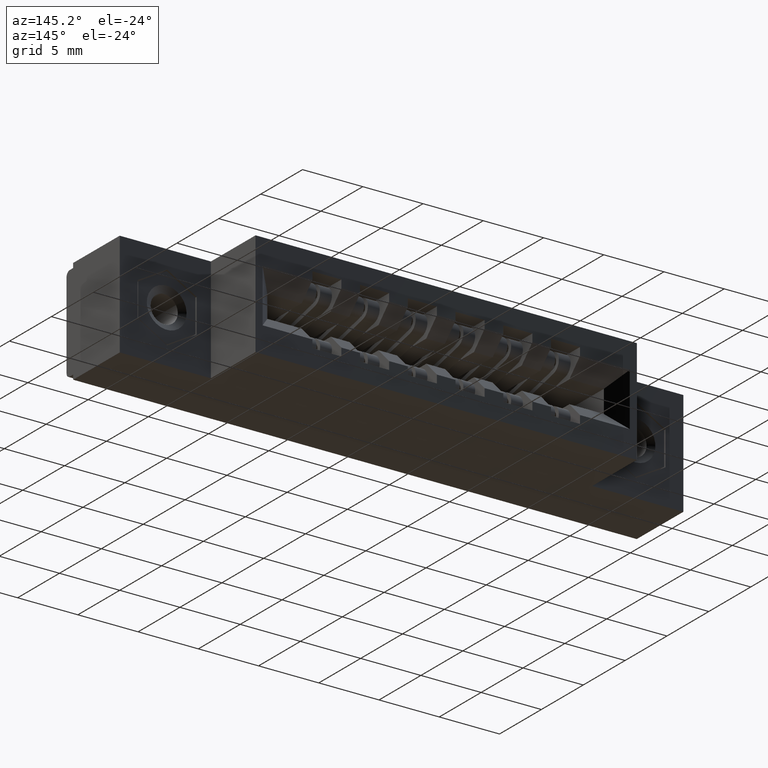
[diagram: clean part render]
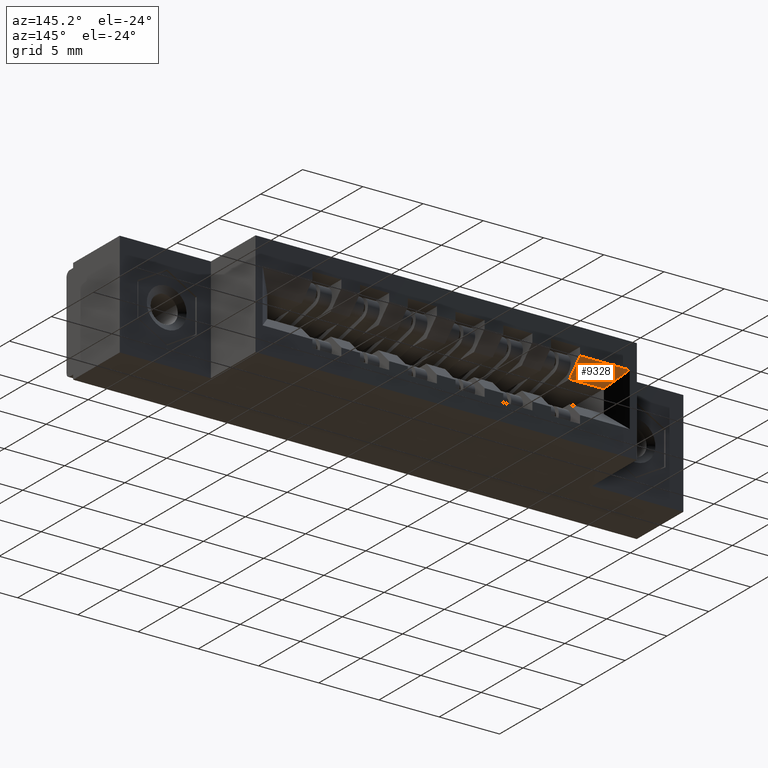
[diagram: same view with one face highlighted and labeled with its STEP entity id]
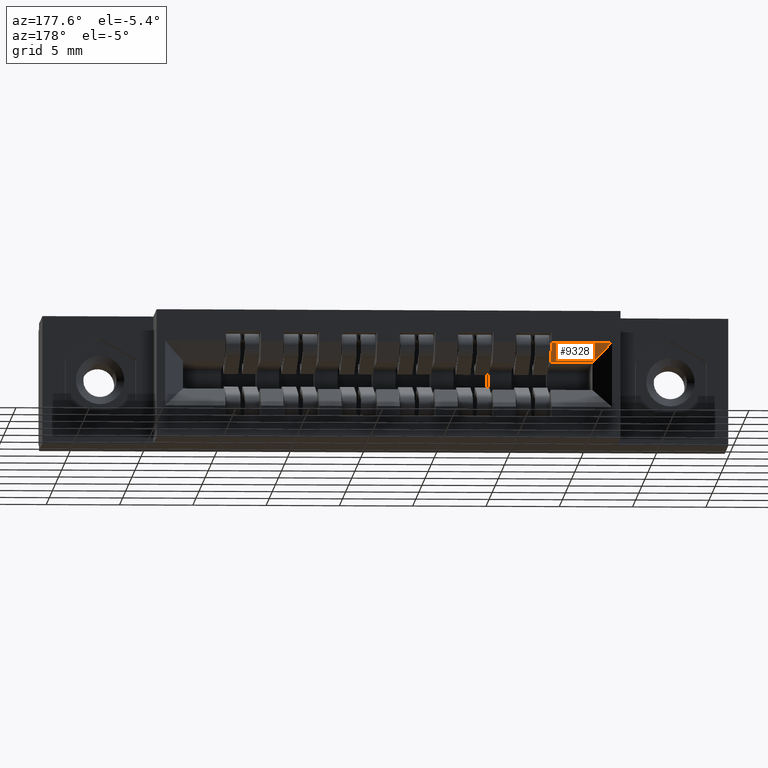
[diagram: same view with one face highlighted and labeled with its STEP entity id]
A machine part, auxiliary view. The second image highlights one B-rep face of the part: STEP entity #9328.
A second angle (auxiliary view) of the same face is appended — the face is thin or edge-on in the first view.
In plain terms, the highlighted planar face has unit normal (0, -0.7071, 0.7071).
Its self-contained STEP definition (entity closure, byte-faithful):
#70 = CARTESIAN_POINT ( 'NONE',  ( 0.3709999999999986600, 0.4100000000000002500, -0.1345000000000006500 ) ) ;
#230 = CARTESIAN_POINT ( 'NONE',  ( 0.3709999999999986600, 0.4100000000000002500, -0.1345000000000006500 ) ) ;
#534 = CARTESIAN_POINT ( 'NONE',  ( 0.4834999999999986000, 0.4600000000000000200, -0.08450000000000035300 ) ) ;
#1187 = ORIENTED_EDGE ( 'NONE', *, *, #7111, .T. ) ;
#1338 = VERTEX_POINT ( 'NONE', #6649 ) ;
#1353 = ORIENTED_EDGE ( 'NONE', *, *, #1368, .F. ) ;
#1368 = EDGE_CURVE ( 'NONE', #5379, #9745, #1593, .T. ) ;
#1593 = LINE ( 'NONE', #10395, #7477 ) ;
#1651 = EDGE_LOOP ( 'NONE', ( #8245, #6163, #1353, #1187 ) ) ;
#1674 = CARTESIAN_POINT ( 'NONE',  ( 0.3209999999999986200, 0.4600000000000000200, -0.08450000000000063000 ) ) ;
#2126 = DIRECTION ( 'NONE',  ( 1.097561500847079400E-017, -0.7071067811865494600, 0.7071067811865456900 ) ) ;
#2577 = VERTEX_POINT ( 'NONE', #1674 ) ;
#3073 = CARTESIAN_POINT ( 'NONE',  ( 4.012401740694376300E-018, 0.4600000000000000200, -0.08450000000000063000 ) ) ;
#3312 = VECTOR ( 'NONE', #7383, 39.37007874015748100 ) ;
#4118 = VECTOR ( 'NONE', #9868, 39.37007874015748100 ) ;
#4289 = VECTOR ( 'NONE', #8078, 39.37007874015748900 ) ;
#4826 = PLANE ( 'NONE',  #11341 ) ;
#4830 = EDGE_CURVE ( 'NONE', #9745, #1338, #8993, .T. ) ;
#5208 = FACE_OUTER_BOUND ( 'NONE', #1651, .T. ) ;
#5379 = VERTEX_POINT ( 'NONE', #70 ) ;
#5890 = LINE ( 'NONE', #3073, #3312 ) ;
#6126 = CARTESIAN_POINT ( 'NONE',  ( 0.4834999999999986000, 0.4100000000000002500, -0.1345000000000006500 ) ) ;
#6163 = ORIENTED_EDGE ( 'NONE', *, *, #4830, .F. ) ;
#6649 = CARTESIAN_POINT ( 'NONE',  ( 0.4834999999999986000, 0.4600000000000000200, -0.08450000000000035300 ) ) ;
#6728 = LINE ( 'NONE', #10875, #4289 ) ;
#7111 = EDGE_CURVE ( 'NONE', #5379, #2577, #6728, .T. ) ;
#7383 = DIRECTION ( 'NONE',  ( -1.000000000000000000, 0.0000000000000000000, 1.552186360036513000E-017 ) ) ;
#7477 = VECTOR ( 'NONE', #8572, 39.37007874015748100 ) ;
#7699 = EDGE_CURVE ( 'NONE', #1338, #2577, #5890, .T. ) ;
#8078 = DIRECTION ( 'NONE',  ( -0.5773502691896268400, 0.5773502691896236200, 0.5773502691896267300 ) ) ;
#8245 = ORIENTED_EDGE ( 'NONE', *, *, #7699, .F. ) ;
#8520 = DIRECTION ( 'NONE',  ( 0.0000000000000000000, -0.7071067811865455700, -0.7071067811865493500 ) ) ;
#8572 = DIRECTION ( 'NONE',  ( 1.000000000000000000, 0.0000000000000000000, -1.552186360036513000E-017 ) ) ;
#8993 = LINE ( 'NONE', #534, #4118 ) ;
#9328 = ADVANCED_FACE ( 'NONE', ( #5208 ), #4826, .F. ) ;
#9745 = VERTEX_POINT ( 'NONE', #6126 ) ;
#9868 = DIRECTION ( 'NONE',  ( -0.0000000000000000000, 0.7071067811865435800, 0.7071067811865514600 ) ) ;
#10395 = CARTESIAN_POINT ( 'NONE',  ( 0.3709999999999986600, 0.4100000000000002500, -0.1345000000000006500 ) ) ;
#10875 = CARTESIAN_POINT ( 'NONE',  ( 0.3709999999999986600, 0.4100000000000002500, -0.1345000000000006500 ) ) ;
#11341 = AXIS2_PLACEMENT_3D ( 'NONE', #230, #2126, #8520 ) ;